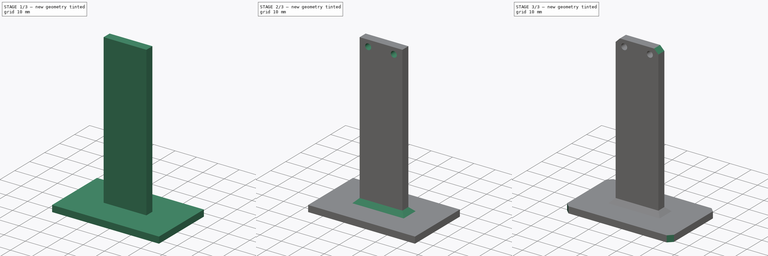
[diagram: build sequence overview — one tinted view per stage of 3, left to right]
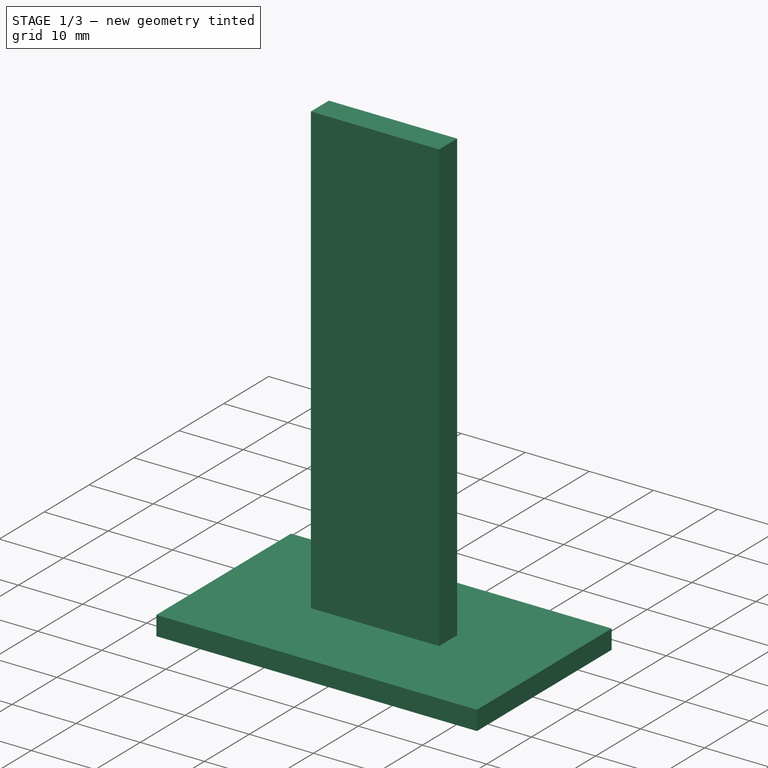
[diagram: stage 1 of 3 — iso view after this stage's code; geometry added in this stage tinted green]
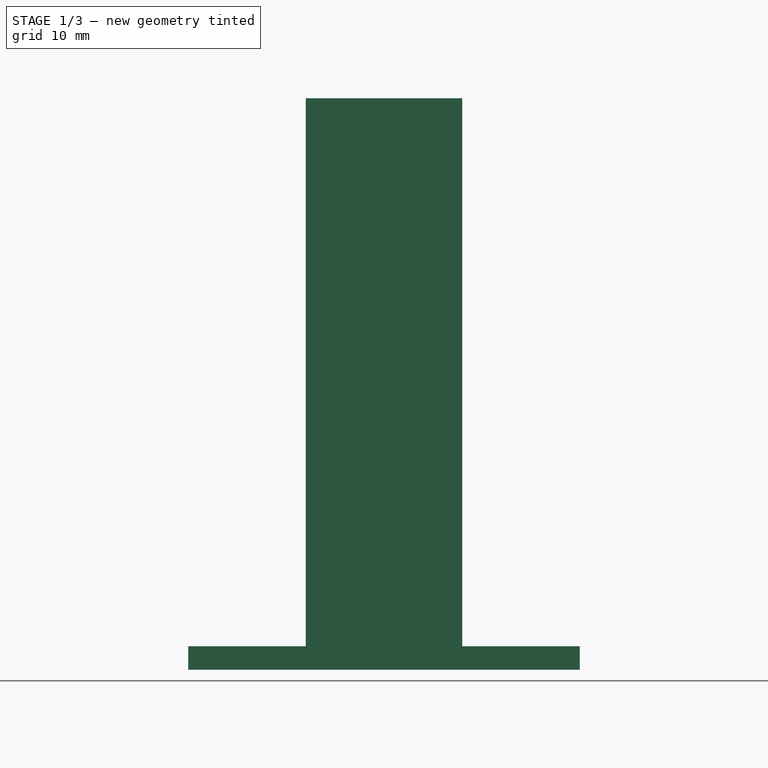
[diagram: stage 1 of 3 — front view after this stage's code; geometry added in this stage tinted green]
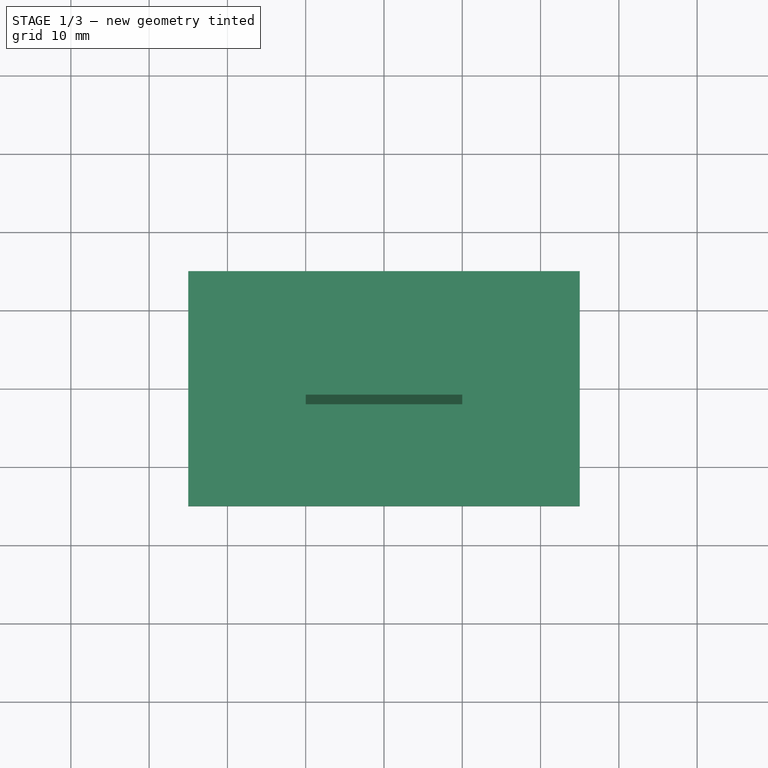
[diagram: stage 1 of 3 — top view after this stage's code; geometry added in this stage tinted green]
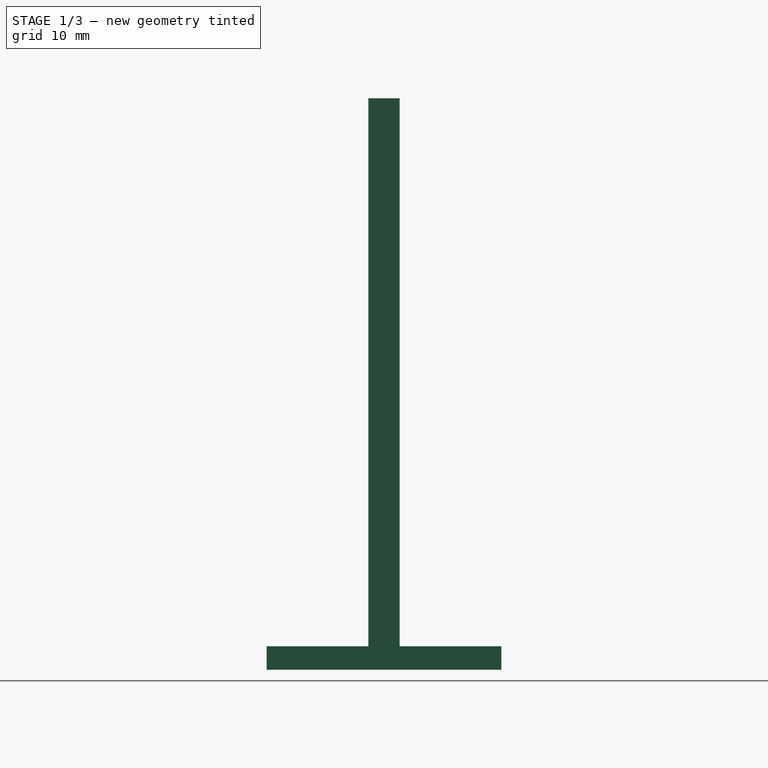
[diagram: stage 1 of 3 — right view after this stage's code; geometry added in this stage tinted green]
FCSTD DOCUMENT  (FreeCAD 0.18R4 (GitTag))
Label: Camera_Stand
License: All rights reserved
LicenseURL: http://en.wikipedia.org/wiki/All_rights_reserved
objects: Sketcher::SketchObject×3, PartDesign::Chamfer×3, PartDesign::Pad×2, PartDesign::Pocket×1, PartDesign::Body×1
note: 13 computed .brp shape members not serialized (recipe doc carries the construction recipe); baked Part::Feature solids carry a one-line shape summary decoded from their .brp

FEATURE [Sketcher::SketchObject] Sketch
  MapMode = 5
  Support = -> [XY_Plane]
  sketch-geometry (4):
    g0: LineSegment StartX=-25 StartY=15 StartZ=0 EndX=25 EndY=15 EndZ=0
    g1: LineSegment StartX=25 StartY=15 StartZ=0 EndX=25 EndY=-15 EndZ=0
    g2: LineSegment StartX=25 StartY=-15 StartZ=0 EndX=-25 EndY=-15 EndZ=0
    g3: LineSegment StartX=-25 StartY=-15 StartZ=0 EndX=-25 EndY=15 EndZ=0
  constraints (12):
    c: Coincident(g0,g1)
    c: Coincident(g1,g2)
    c: Coincident(g2,g3)
    c: Coincident(g3,g0)
    c: Horizontal(g0)
    c: Horizontal(g2)
    c: Vertical(g1)
    c: Vertical(g3)
    c: DistanceX(g0,g-1) = 25
    c: DistanceX(g0,g0) = 50
    c: DistanceY(g1,g0) = 30
    c: DistanceY(g-1,g0) = 15
FEATURE [PartDesign::Pad] Pad
  Length = 3
  Length2 = 100
  Profile = -> Sketch
  Type = 0
FEATURE [Sketcher::SketchObject] Sketch001
  MapMode = 5
  Placement = pos=(0,0,3) rot=(0,0,1;0rad)
  Support = -> [Pad]
  sketch-geometry (4):
    g0: LineSegment StartX=-10 StartY=2 StartZ=0 EndX=10 EndY=2 EndZ=0
    g1: LineSegment StartX=10 StartY=2 StartZ=0 EndX=10 EndY=-2 EndZ=0
    g2: LineSegment StartX=10 StartY=-2 StartZ=0 EndX=-10 EndY=-2 EndZ=0
    g3: LineSegment StartX=-10 StartY=-2 StartZ=0 EndX=-10 EndY=2 EndZ=0
  constraints (12):
    c: Coincident(g0,g1)
    c: Coincident(g1,g2)
    c: Coincident(g2,g3)
    c: Coincident(g3,g0)
    c: Horizontal(g0)
    c: Horizontal(g2)
    c: Vertical(g1)
    c: Vertical(g3)
    c: DistanceX(g0,g-1) = 10
    c: DistanceX(g0,g0) = 20
    c: DistanceY(g-1,g0) = 2
    c: DistanceY(g1,g0) = 4
FEATURE [PartDesign::Pad] Pad001
  BaseFeature = -> Pad
  Length = 70
  Length2 = 100
  Profile = -> Sketch001
  Type = 0
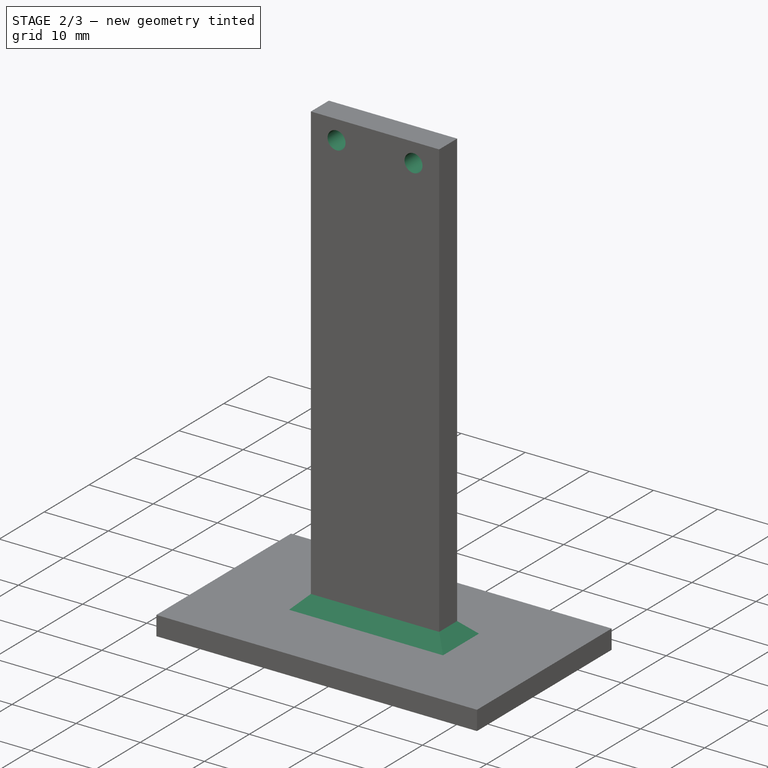
[diagram: stage 2 of 3 — iso view after this stage's code; geometry added in this stage tinted green]
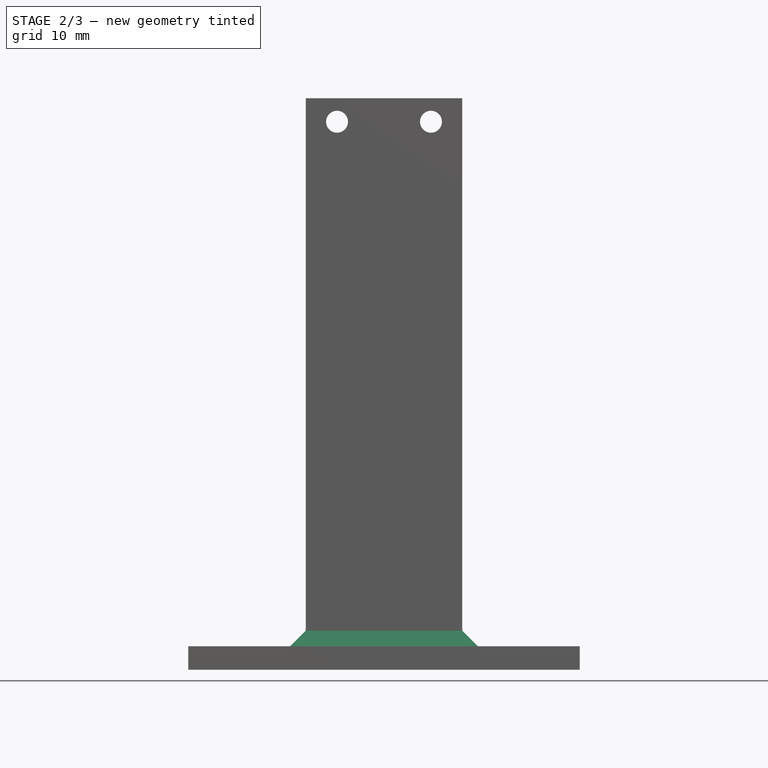
[diagram: stage 2 of 3 — front view after this stage's code; geometry added in this stage tinted green]
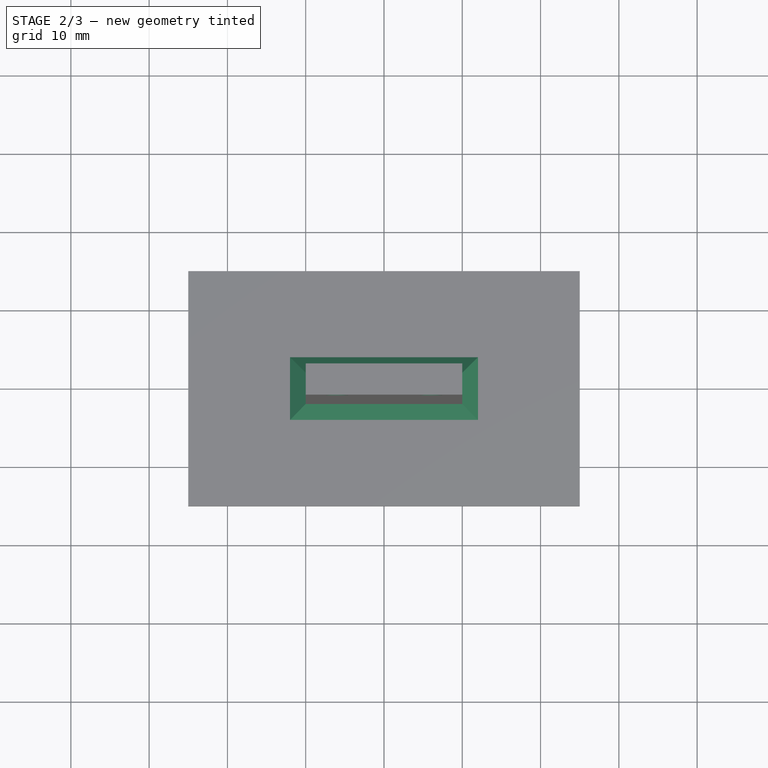
[diagram: stage 2 of 3 — top view after this stage's code; geometry added in this stage tinted green]
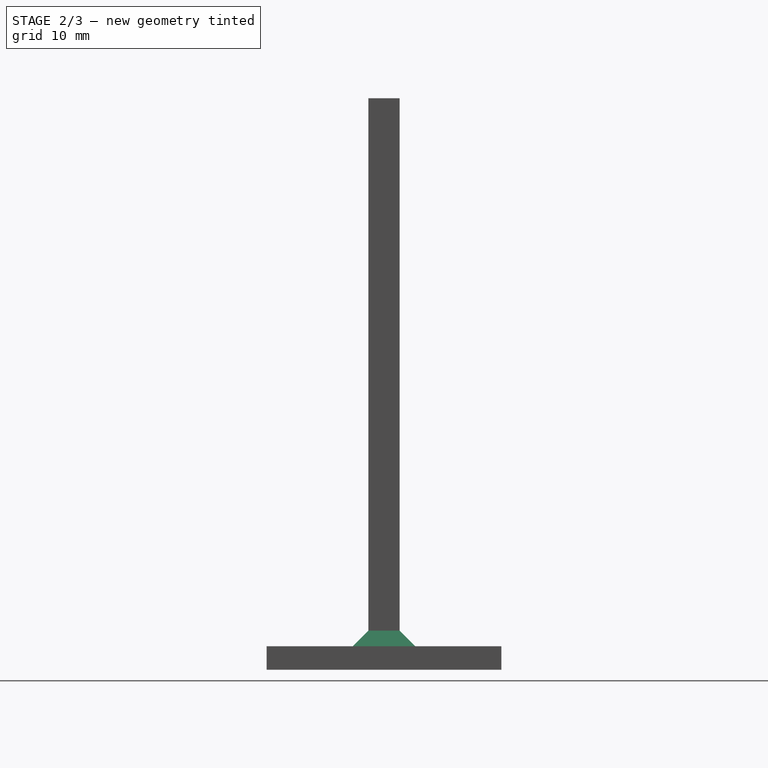
[diagram: stage 2 of 3 — right view after this stage's code; geometry added in this stage tinted green]
FEATURE [Sketcher::SketchObject] Sketch002
  MapMode = 5
  Placement = pos=(0,-2,0) rot=(1,0,0;1.5708rad)
  Support = -> [Pad001]
  sketch-geometry (2):
    g0: Circle CenterX=-6 CenterY=70 CenterZ=0 NormalX=0 NormalY=0 NormalZ=1 AngleXU=0 Radius=1.4
    g1: Circle CenterX=6 CenterY=70 CenterZ=0 NormalX=0 NormalY=0 NormalZ=1 AngleXU=0 Radius=1.4
  constraints (6):
    c: DistanceY(g-1,g0) = 70
    c: DistanceY(g0,g1) = 0
    c: DistanceX(g0,g-1) = 6
    c: DistanceX(g0,g1) = 12
    c: Radius(g0) = 1.4
    c: Radius(g1) = 1.4
FEATURE [PartDesign::Pocket] Pocket
  BaseFeature = -> Pad001
  Length = 5
  Length2 = 100
  Profile = -> Sketch002
  Type = 0
FEATURE [PartDesign::Chamfer] Chamfer
  Base = -> Pocket [Edge14,Edge15,Edge13,Edge16]
  BaseFeature = -> Pocket
  Size = 2
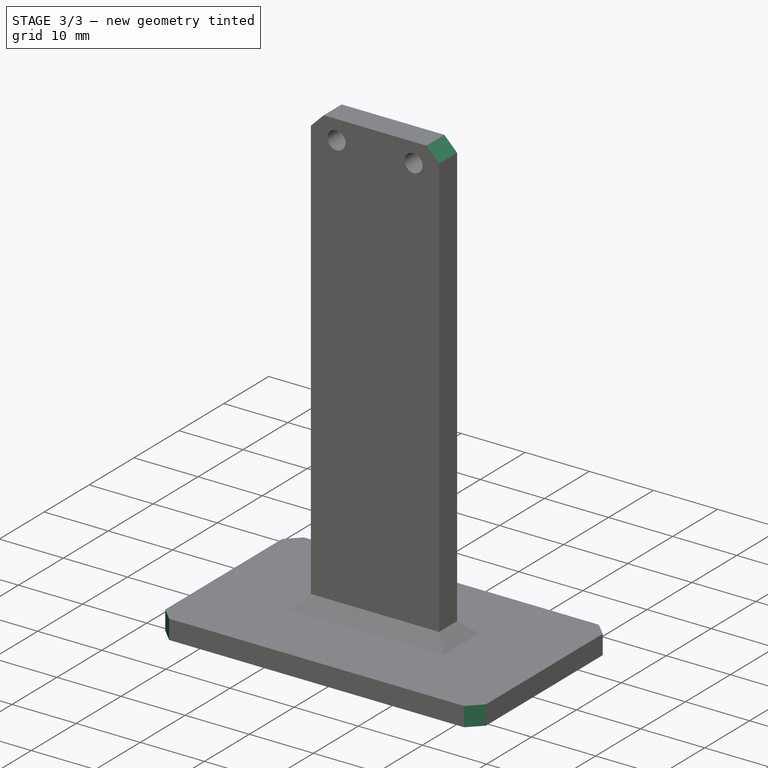
[diagram: stage 3 of 3 — iso view after this stage's code; geometry added in this stage tinted green]
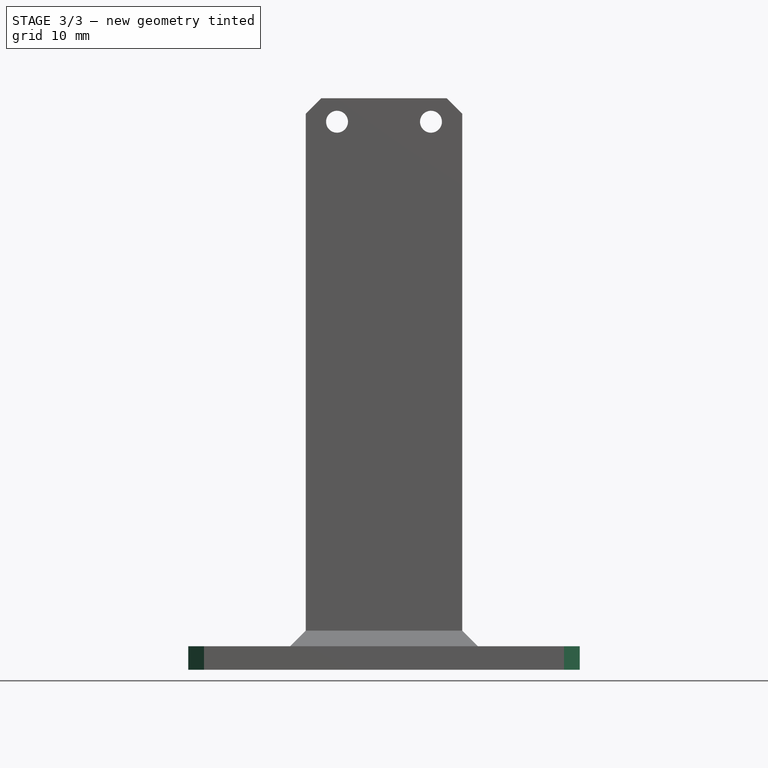
[diagram: stage 3 of 3 — front view after this stage's code; geometry added in this stage tinted green]
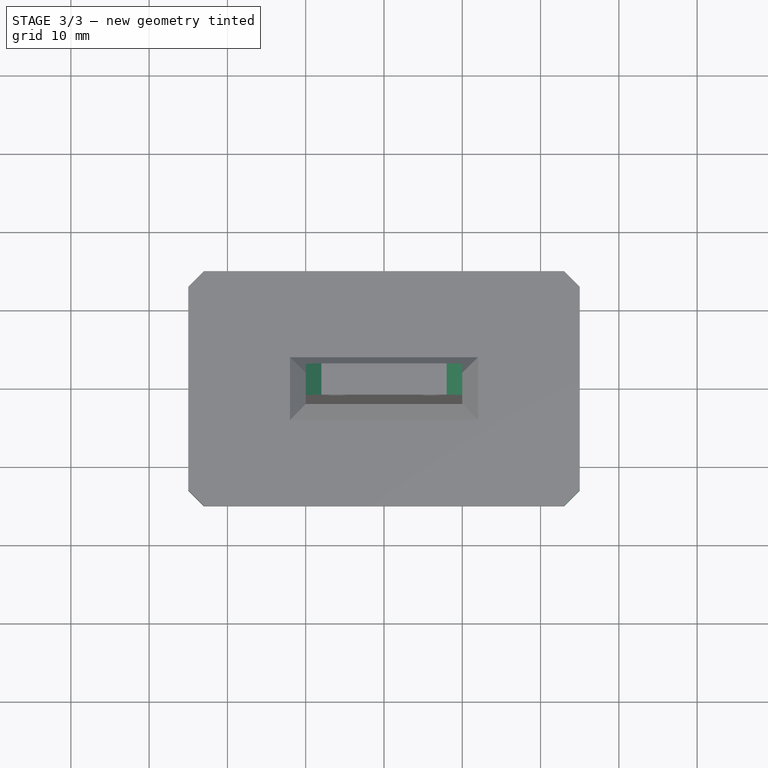
[diagram: stage 3 of 3 — top view after this stage's code; geometry added in this stage tinted green]
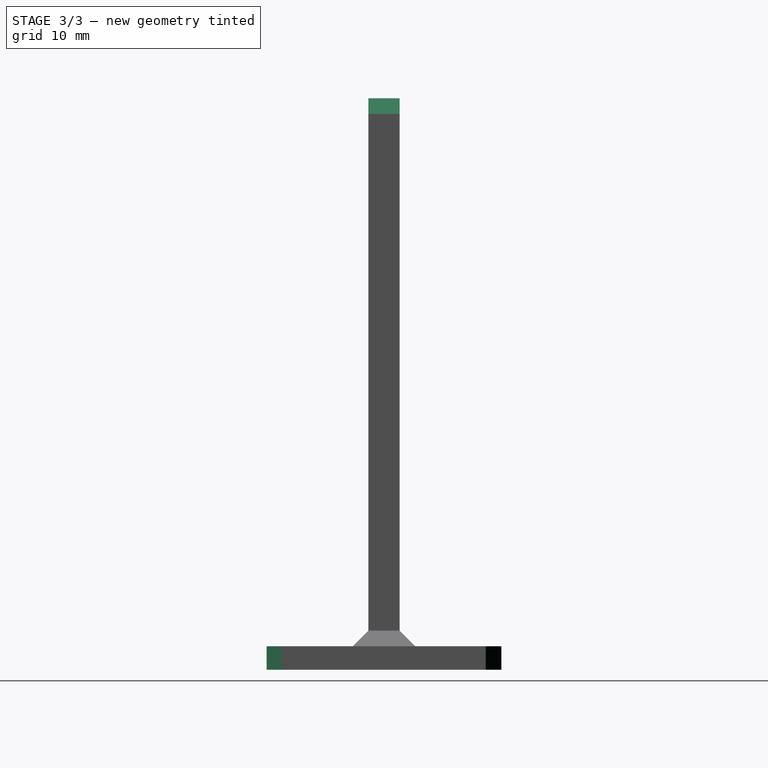
[diagram: stage 3 of 3 — right view after this stage's code; geometry added in this stage tinted green]
FEATURE [PartDesign::Chamfer] Chamfer001
  Base = -> Chamfer [Edge20,Edge17,Edge22,Edge18]
  BaseFeature = -> Chamfer
  Size = 2
FEATURE [PartDesign::Chamfer] Chamfer002
  Base = -> Chamfer001 [Edge38,Edge48]
  BaseFeature = -> Chamfer001
  Size = 2
FEATURE [PartDesign::Body] Body
  Group = -> [Sketch,Pad,Sketch001,Pad001,Sketch002,Pocket,Chamfer,Chamfer001,Chamfer002]
  Origin = -> Origin
  Tip = -> Chamfer002
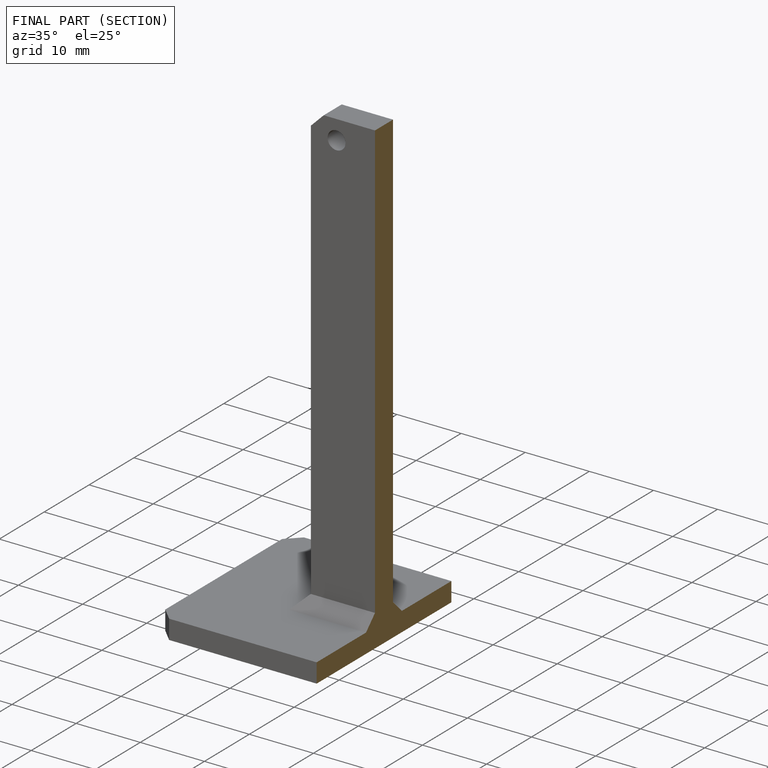
[diagram: finished part — half-section view (interior)]
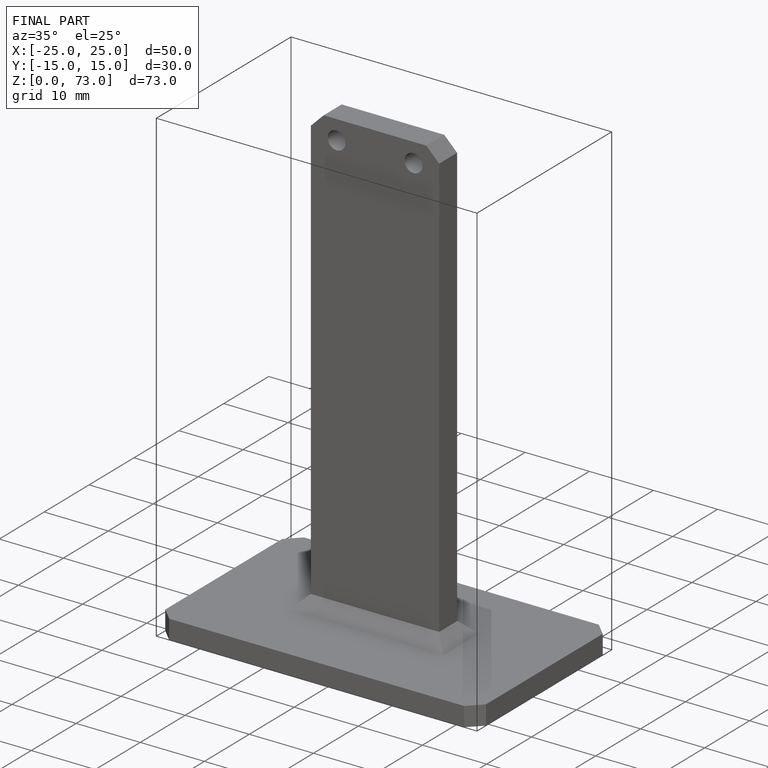
[diagram: finished part — iso view with bounding-box wireframe]
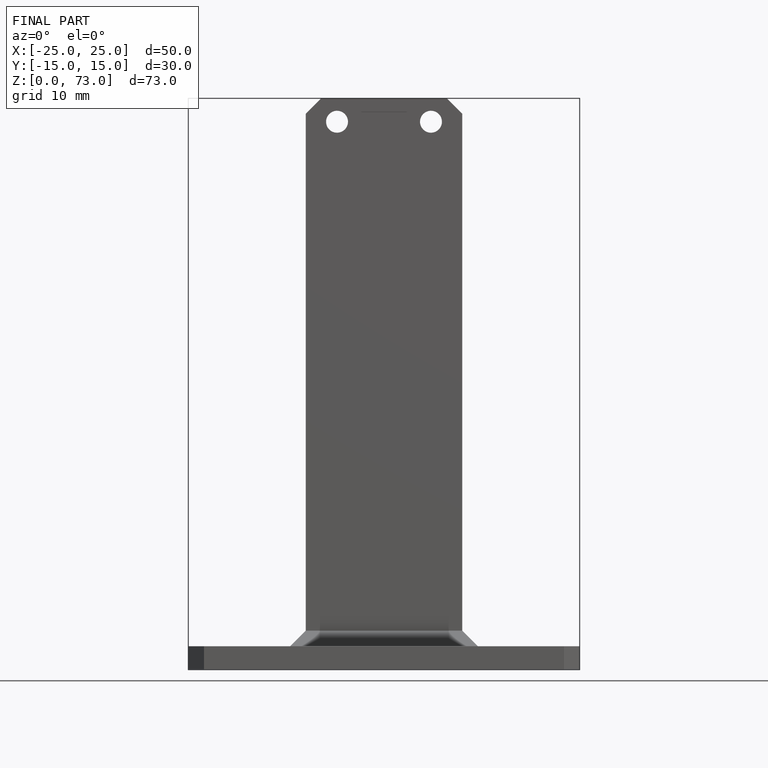
[diagram: finished part — front view with bounding-box wireframe]
